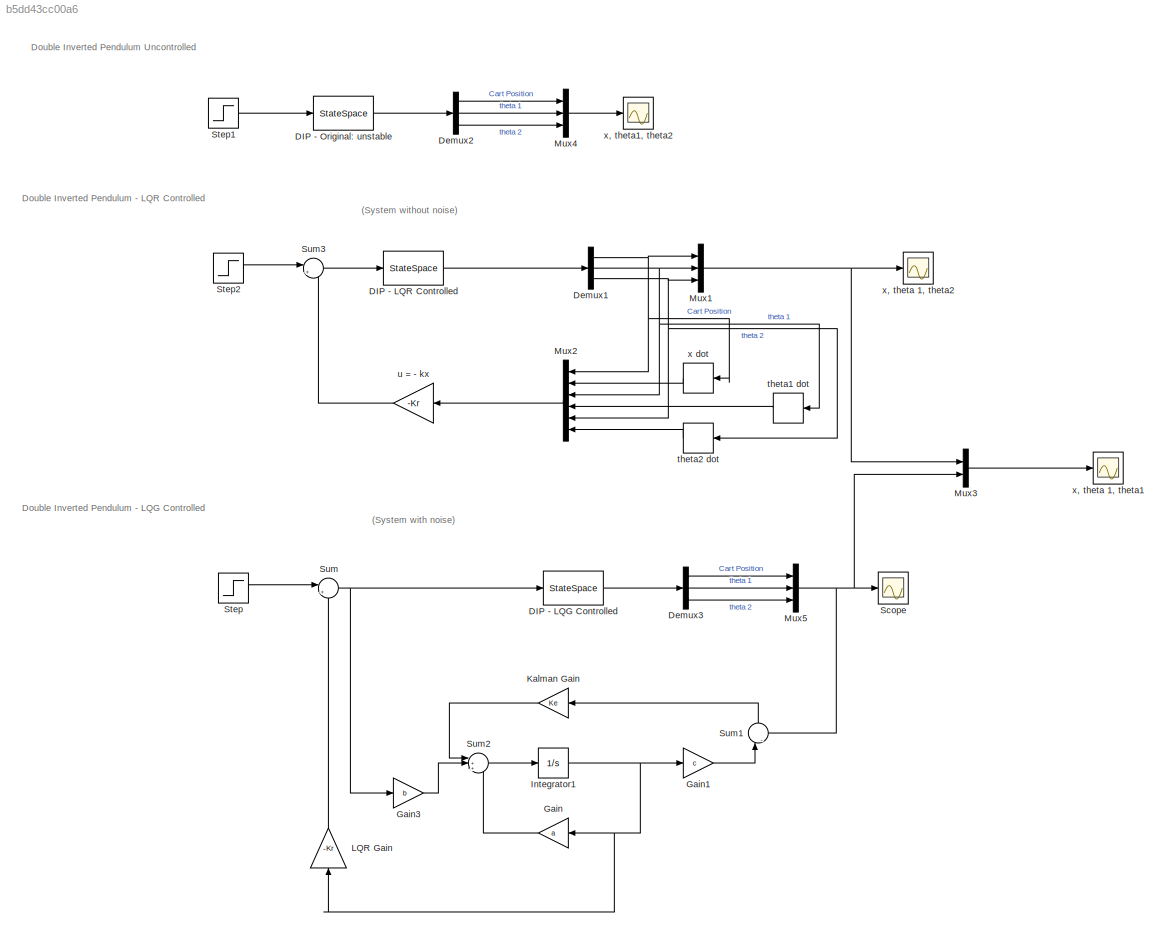
MODEL slx_b5dd43cc00a6
KIND model
CONFIG AbsTol = auto
CONFIG EnableMultiTasking = off
CONFIG FixedStep = auto
CONFIG MaxStep = auto
CONFIG MinStep = auto
CONFIG RelTol = 1e-3
CONFIG SampleTimeConstraint = Unconstrained
CONFIG Solver = VariableStepAuto
CONFIG SolverName = VariableStepAuto
CONFIG StartTime = 0.0
CONFIG StopTime = 10.0
BLOCK [Scope]  x, theta 1, theta1
  NumInputPorts = 1
  Ports = [1]
  ScopeSpecificationString = Simulink.scopes.TimeScopeBlockCfg('CurrentConfiguration', extmgr.ConfigurationSet(extmgr.Configuration('Core','General UI',true),extmgr.Configuration('Core','Source UI',true),extmgr.Configuration('Sources','WiredSimulink',true,'DataLoggingVariableName','ScopeData3'),extmgr.Configuration('Visuals','Time Domain',true,'SerializedDisplays',{struct('MinYLimReal','-0.05426','MaxYLimReal','0.37154','YLab...<+1497ch>
BLOCK [Scope]  x, theta 1, theta2
  NumInputPorts = 1
  Ports = [1]
  ScopeSpecificationString = Simulink.scopes.TimeScopeBlockCfg('CurrentConfiguration', extmgr.ConfigurationSet(extmgr.Configuration('Core','General UI',true),extmgr.Configuration('Core','Source UI',true),extmgr.Configuration('Sources','WiredSimulink',true,'DataLoggingVariableName','ScopeData1'),extmgr.Configuration('Visuals','Time Domain',true,'SerializedDisplays',{struct('MinYLimReal','-0.05407','MaxYLimReal','0.37102','YLab...<+1461ch>
BLOCK [StateSpace] DIP - LQG Controlled
  A = a
  B = b
  C = c
  D = d
  Ports = [1, 1]
  X0 = 0
BLOCK [StateSpace] DIP - LQR Controlled
  A = a
  B = b
  C = c
  D = d
  Ports = [1, 1]
  X0 = 0
BLOCK [StateSpace] DIP - Original: unstable
  A = a
  B = b
  C = c
  D = d
  Ports = [1, 1]
  X0 = 0
BLOCK [Demux] Demux1
  DisplayOption = bar
  Outputs = 3
  Ports = [1, 3]
BLOCK [Demux] Demux2
  DisplayOption = bar
  Outputs = 3
  Ports = [1, 3]
BLOCK [Demux] Demux3
  DisplayOption = bar
  Outputs = 3
  Ports = [1, 3]
BLOCK [Gain] Gain
  Gain = a
  Multiplication = Matrix(K*u)
  OutDataTypeStr = Inherit: Inherit via internal rule
  ParamDataTypeStr = Inherit: Inherit via internal rule
  SaturateOnIntegerOverflow = off
BLOCK [Gain] Gain1
  Gain = c
  Multiplication = Matrix(K*u)
  OutDataTypeStr = Inherit: Inherit via internal rule
  ParamDataTypeStr = Inherit: Inherit via internal rule
  SaturateOnIntegerOverflow = off
BLOCK [Gain] Gain3
  Gain = b
  Multiplication = Matrix(K*u)
  OutDataTypeStr = Inherit: Inherit via internal rule
  ParamDataTypeStr = Inherit: Inherit via internal rule
  SaturateOnIntegerOverflow = off
BLOCK [Integrator] Integrator1
  Ports = [1, 1]
BLOCK [Gain] Kalman Gain
  Gain = Ke
  Multiplication = Matrix(K*u)
  OutDataTypeStr = Inherit: Inherit via internal rule
  ParamDataTypeStr = Inherit: Inherit via internal rule
  SaturateOnIntegerOverflow = off
BLOCK [Gain] LQR Gain
  Gain = -Kr
  Multiplication = Matrix(K*u)
  OutDataTypeStr = Inherit: Inherit via internal rule
  ParamDataTypeStr = Inherit: Inherit via internal rule
  SaturateOnIntegerOverflow = off
BLOCK [Mux] Mux1
  DisplayOption = bar
  Inputs = 3
  Ports = [3, 1]
BLOCK [Mux] Mux2
  DisplayOption = bar
  Inputs = 6
  Ports = [6, 1]
BLOCK [Mux] Mux3
  DisplayOption = bar
  Inputs = 2
  Ports = [2, 1]
BLOCK [Mux] Mux4
  DisplayOption = bar
  Inputs = 3
  Ports = [3, 1]
BLOCK [Mux] Mux5
  DisplayOption = bar
  Inputs = 3
  Ports = [3, 1]
BLOCK [Scope] Scope
  NumInputPorts = 1
  Ports = [1]
  ScopeSpecificationString = Simulink.scopes.TimeScopeBlockCfg('CurrentConfiguration', extmgr.ConfigurationSet(extmgr.Configuration('Core','General UI',true),extmgr.Configuration('Core','Source UI',true),extmgr.Configuration('Sources','WiredSimulink',true),extmgr.Configuration('Visuals','Time Domain',true,'SerializedDisplays',{struct('MinYLimReal','-0.05426','MaxYLimReal','0.37154','YLabelReal','','MinYLimMag','0.00000','MaxY...<+1380ch>
BLOCK [Step] Step
  SampleTime = 0
  Time = 0
BLOCK [Step] Step1
  SampleTime = 0
  Time = 0
BLOCK [Step] Step2
  SampleTime = 0
  Time = 0
BLOCK [Sum] Sum
  IconShape = round
  InputSameDT = off
  Inputs = |++
  OutDataTypeStr = Inherit: Inherit via internal rule
  Ports = [2, 1]
  SaturateOnIntegerOverflow = off
BLOCK [Sum] Sum1
  IconShape = round
  InputSameDT = off
  Inputs = |-+
  OutDataTypeStr = Inherit: Inherit via internal rule
  Ports = [2, 1]
  SaturateOnIntegerOverflow = off
BLOCK [Sum] Sum2
  IconShape = round
  InputSameDT = off
  Inputs = |+++
  OutDataTypeStr = Inherit: Inherit via internal rule
  Ports = [3, 1]
  SaturateOnIntegerOverflow = off
BLOCK [Sum] Sum3
  IconShape = round
  InputSameDT = off
  Inputs = |++
  OutDataTypeStr = Inherit: Inherit via internal rule
  Ports = [2, 1]
  SaturateOnIntegerOverflow = off
BLOCK [Derivative] theta1 dot
BLOCK [Derivative] theta2 dot
BLOCK [Gain] u = - kx
  Gain = -Kr
  Multiplication = Matrix(K*u)
  OutDataTypeStr = Inherit: Inherit via internal rule
  ParamDataTypeStr = Inherit: Inherit via internal rule
  SaturateOnIntegerOverflow = off
BLOCK [Derivative] x dot
BLOCK [Scope] x, theta1, theta2
  NumInputPorts = 1
  Ports = [1]
  ScopeSpecificationString = Simulink.scopes.TimeScopeBlockCfg('CurrentConfiguration', extmgr.ConfigurationSet(extmgr.Configuration('Core','General UI',true),extmgr.Configuration('Core','Source UI',true),extmgr.Configuration('Sources','WiredSimulink',true,'DataLoggingVariableName','ScopeData2'),extmgr.Configuration('Visuals','Time Domain',true,'SerializedDisplays',{struct('MinYLimReal','-40507072361362755000000000000000.00000...<+1707ch>
ANNOTATION (root): (System with noise)
ANNOTATION (root): (System without noise)
ANNOTATION (root): Double Inverted Pendulum - LQG Controlled
ANNOTATION (root): Double Inverted Pendulum - LQR Controlled
ANNOTATION (root): Double Inverted Pendulum Uncontrolled
LINE DIP - LQG Controlled:1 -> Demux3:1
LINE DIP - LQR Controlled:1 -> Demux1:1
LINE DIP - Original: unstable:1 -> Demux2:1
NET Demux1:1 -> Mux1:1, Mux2:1, x dot:1
NET Demux1:2 -> Mux1:2, Mux2:3, theta1 dot:1
NET Demux1:3 -> Mux1:3, Mux2:5, theta2 dot:1
LINE Demux2:1 -> Mux4:1
LINE Demux2:2 -> Mux4:2
LINE Demux2:3 -> Mux4:3
LINE Demux3:1 -> Mux5:1
LINE Demux3:2 -> Mux5:2
LINE Demux3:3 -> Mux5:3
LINE Gain1:1 -> Sum1:1
LINE Gain3:1 -> Sum2:2
LINE Gain:1 -> Sum2:3
NET Integrator1:1 -> Gain1:1, Gain:1, LQR Gain:1
LINE Kalman Gain:1 -> Sum2:1
LINE LQR Gain:1 -> Sum:2
NET Mux1:1 ->  x, theta 1, theta2:1, Mux3:1
LINE Mux2:1 -> u = - kx:1
LINE Mux3:1 ->  x, theta 1, theta1:1
LINE Mux4:1 -> x, theta1, theta2:1
NET Mux5:1 -> Mux3:2, Scope:1, Sum1:2
LINE Step1:1 -> DIP - Original: unstable:1
LINE Step2:1 -> Sum3:1
LINE Step:1 -> Sum:1
LINE Sum1:1 -> Kalman Gain:1
LINE Sum2:1 -> Integrator1:1
LINE Sum3:1 -> DIP - LQR Controlled:1
NET Sum:1 -> DIP - LQG Controlled:1, Gain3:1
LINE theta1 dot:1 -> Mux2:4
LINE theta2 dot:1 -> Mux2:6
LINE u = - kx:1 -> Sum3:2
LINE x dot:1 -> Mux2:2
note: NET lines group one-source signal fan-out (src -> all destinations, sorted); 1:1 wires keep LINE
